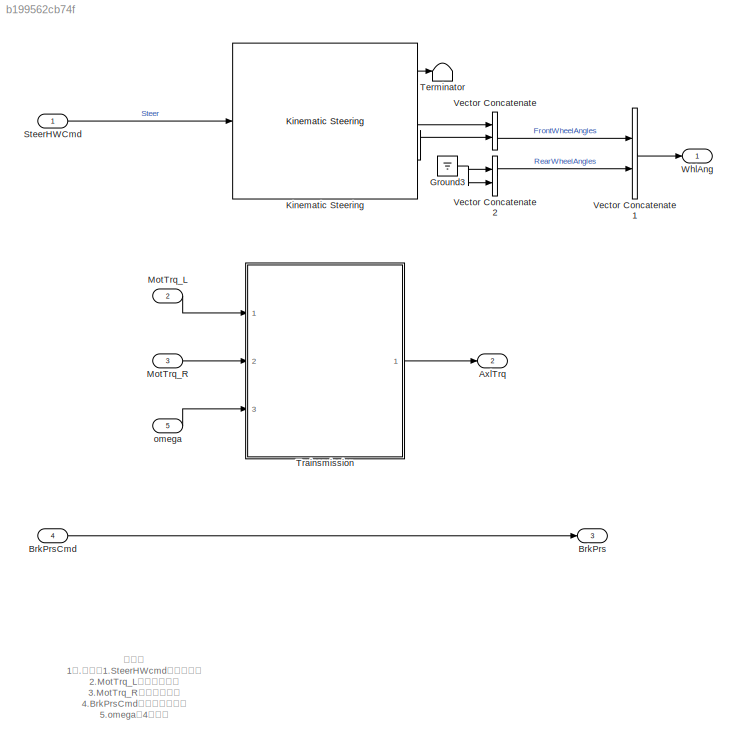
MODEL slx_b199562cb74f
KIND model
CONFIG AbsTol = auto
CONFIG EnableMultiTasking = off
CONFIG FixedStep = .001
CONFIG MaxStep = auto
CONFIG MinStep = auto
CONFIG RelTol = 1e-3
CONFIG SampleTimeConstraint = Unconstrained
CONFIG Solver = ode23tb
CONFIG SolverName = ode23tb
CONFIG StartTime = 0.0
CONFIG StopTime = inf
WORKSPACE source: mxarray member
WORKSPACE Trans: object (value not decoded)
WORKSPACE VEH: object (value not decoded)
BLOCK [Outport] AxlTrq
  Port = 2
  VectorParamsAs1DForOutWhenUnconnected = off
BLOCK [Outport] BrkPrs
  Port = 3
  PortDimensions = 4
  VectorParamsAs1DForOutWhenUnconnected = off
BLOCK [Inport] BrkPrsCmd
  Port = 4
  PortDimensions = 4
BLOCK [Ground] Ground3
BLOCK [Reference] Kinematic Steering  REF=vehdynlibsteering/Kinematic Steering
  Ports = [1, 3]
  SourceBlock = vehdynlibsteering/Kinematic Steering
  SourceProductName = Vehicle Dynamics Blockset
  SourceType = Kinematic Steering
BLOCK [Inport] MotTrq_L
  Port = 2
BLOCK [Inport] MotTrq_R
  Port = 3
BLOCK [Inport] SteerHWCmd
BLOCK [Terminator] Terminator
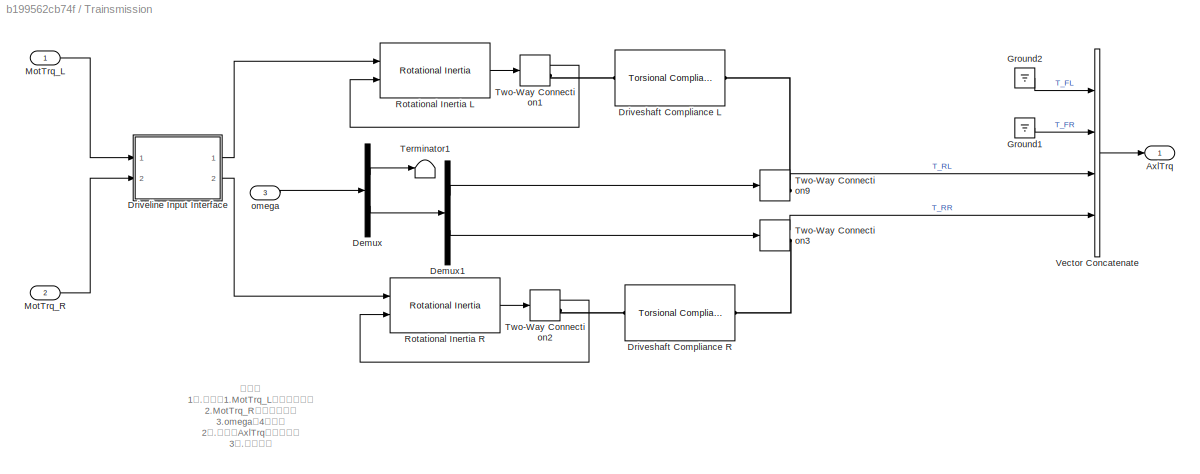
BLOCK [SubSystem] Trainsmission
  Ports = [3, 1]
  RequestExecContextInheritance = off
BLOCK [Outport] Trainsmission/AxlTrq
  VectorParamsAs1DForOutWhenUnconnected = off
BLOCK [Demux] Trainsmission/Demux
  Outputs = [2,2]
  Ports = [1, 2]
BLOCK [Demux] Trainsmission/Demux1
  Outputs = 2
  Ports = [1, 2]
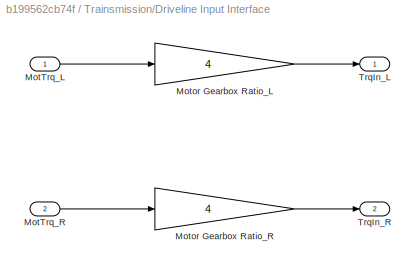
BLOCK [SubSystem] Trainsmission/Driveline Input Interface
  Ports = [2, 2]
  RequestExecContextInheritance = off
BLOCK [Inport] Trainsmission/Driveline Input Interface/MotTrq_L
BLOCK [Inport] Trainsmission/Driveline Input Interface/MotTrq_R
  Port = 2
BLOCK [Gain] Trainsmission/Driveline Input Interface/Motor Gearbox Ratio_L
  Gain = 4
BLOCK [Gain] Trainsmission/Driveline Input Interface/Motor Gearbox Ratio_R
  Gain = 4
BLOCK [Outport] Trainsmission/Driveline Input Interface/TrqIn_L
  VectorParamsAs1DForOutWhenUnconnected = off
BLOCK [Outport] Trainsmission/Driveline Input Interface/TrqIn_R
  Port = 2
  VectorParamsAs1DForOutWhenUnconnected = off
BLOCK [Reference] Trainsmission/Driveshaft Compliance L  REF=autolibsharedcoupling/Torsional Compliance
  Ports = [0, 0, 0, 0, 0, 1, 1]
  SourceBlock = autolibsharedcoupling/Torsional Compliance
  SourceProductBaseCode = PW,MT,VE,VP
  SourceType = Torsional Compliance
BLOCK [Reference] Trainsmission/Driveshaft Compliance R  REF=autolibsharedcoupling/Torsional Compliance
  Ports = [0, 0, 0, 0, 0, 1, 1]
  SourceBlock = autolibsharedcoupling/Torsional Compliance
  SourceProductBaseCode = PW,MT,VE,VP
  SourceType = Torsional Compliance
BLOCK [Ground] Trainsmission/Ground1
BLOCK [Ground] Trainsmission/Ground2
BLOCK [Inport] Trainsmission/MotTrq_L
BLOCK [Inport] Trainsmission/MotTrq_R
  Port = 2
BLOCK [Reference] Trainsmission/Rotational Inertia L  REF=autolibsharedcoupling/Rotational Inertia
  Ports = [2, 1]
  SourceBlock = autolibsharedcoupling/Rotational Inertia
  SourceProductBaseCode = PW,MT,VE,VP
  SourceType = Rotational Inertia
BLOCK [Reference] Trainsmission/Rotational Inertia R  REF=autolibsharedcoupling/Rotational Inertia
  Ports = [2, 1]
  SourceBlock = autolibsharedcoupling/Rotational Inertia
  SourceProductBaseCode = PW,MT,VE,VP
  SourceType = Rotational Inertia
BLOCK [Terminator] Trainsmission/Terminator1
BLOCK [TwoWayConnection] Trainsmission/Two-Way Connection1
  NameLocation = top
  Ports = [1, 1, 0, 0, 0, 0, 1]
BLOCK [TwoWayConnection] Trainsmission/Two-Way Connection2
  NameLocation = top
  Ports = [1, 1, 0, 0, 0, 0, 1]
BLOCK [TwoWayConnection] Trainsmission/Two-Way Connection3
  Ports = [1, 1, 0, 0, 0, 0, 1]
BLOCK [TwoWayConnection] Trainsmission/Two-Way Connection9
  Ports = [1, 1, 0, 0, 0, 0, 1]
BLOCK [Concatenate] Trainsmission/Vector Concatenate
  NumInputs = 4
  Ports = [4, 1]
BLOCK [Inport] Trainsmission/omega
  Port = 3
BLOCK [Concatenate] Vector Concatenate
  Ports = [2, 1]
BLOCK [Concatenate] Vector Concatenate1
  Ports = [2, 1]
BLOCK [Concatenate] Vector Concatenate2
  Ports = [2, 1]
BLOCK [Outport] WhlAng
  Unit = rad
  VectorParamsAs1DForOutWhenUnconnected = off
BLOCK [Inport] omega
  Port = 5
ANNOTATION (root): 注释： 1）.输入：1.SteerHWcmd：转向命令 2.MotTrq_L：左电机转矩 3.MotTrq_R：右电机转矩 4.BrkPrsCmd：制动压力命令 5.omega：4轮转速 2）.输出：1.WhlAng：轮子相对车身的转角 2.AxlTrq：轴向力矩 3.BrkPrs：刹车压力 3）.主模块： 1.Kinematic Steering：阿克曼转向模型 2.Trainsmission：后桥传动模块，主要作用为添加物理传动结构
ANNOTATION Trainsmission: 注释： 1）.输入：1.MotTrq_L：左电机转矩 2.MotTrq_R：右电机转矩 3.omega：4轮轮速 2）.输出：AxlTrq：轴向力矩 3）.主模块： 1.Driveline Input Interface：减速箱力矩转换（简单比例换算） 2.Rotational Inertia：机械传动模块（半轴等），主要设置转动惯量 3.Driveshaft Compliance：弹簧模块（阻尼，频率等），使用默认值
LINE BrkPrsCmd:1 -> BrkPrs:1
NET Ground3:1 -> Vector Concatenate2:1, Vector Concatenate2:2
LINE Kinematic Steering:1 -> Terminator:1
LINE Kinematic Steering:2 -> Vector Concatenate:1
LINE Kinematic Steering:3 -> Vector Concatenate:2
LINE MotTrq_L:1 -> Trainsmission:1
LINE MotTrq_R:1 -> Trainsmission:2
LINE SteerHWCmd:1 -> Kinematic Steering:1
LINE Trainsmission/Demux1:1 -> Trainsmission/Two-Way Connection9:1
LINE Trainsmission/Demux1:2 -> Trainsmission/Two-Way Connection3:1
LINE Trainsmission/Demux:1 -> Trainsmission/Terminator1:1
LINE Trainsmission/Demux:2 -> Trainsmission/Demux1:1
LINE Trainsmission/Driveline Input Interface/MotTrq_L:1 -> Trainsmission/Driveline Input Interface/Motor Gearbox Ratio_L:1
LINE Trainsmission/Driveline Input Interface/MotTrq_R:1 -> Trainsmission/Driveline Input Interface/Motor Gearbox Ratio_R:1
LINE Trainsmission/Driveline Input Interface/Motor Gearbox Ratio_L:1 -> Trainsmission/Driveline Input Interface/TrqIn_L:1
LINE Trainsmission/Driveline Input Interface/Motor Gearbox Ratio_R:1 -> Trainsmission/Driveline Input Interface/TrqIn_R:1
LINE Trainsmission/Driveline Input Interface:1 -> Trainsmission/Rotational Inertia L:1
LINE Trainsmission/Driveline Input Interface:2 -> Trainsmission/Rotational Inertia R:1
LINE Trainsmission/Ground1:1 -> Trainsmission/Vector Concatenate:2
LINE Trainsmission/Ground2:1 -> Trainsmission/Vector Concatenate:1
LINE Trainsmission/MotTrq_L:1 -> Trainsmission/Driveline Input Interface:1
LINE Trainsmission/MotTrq_R:1 -> Trainsmission/Driveline Input Interface:2
LINE Trainsmission/Rotational Inertia L:1 -> Trainsmission/Two-Way Connection1:1
LINE Trainsmission/Rotational Inertia R:1 -> Trainsmission/Two-Way Connection2:1
LINE Trainsmission/Two-Way Connection1:1 -> Trainsmission/Rotational Inertia L:2
LINE Trainsmission/Two-Way Connection2:1 -> Trainsmission/Rotational Inertia R:2
LINE Trainsmission/Two-Way Connection3:1 -> Trainsmission/Vector Concatenate:4
LINE Trainsmission/Two-Way Connection9:1 -> Trainsmission/Vector Concatenate:3
LINE Trainsmission/Vector Concatenate:1 -> Trainsmission/AxlTrq:1
LINE Trainsmission/omega:1 -> Trainsmission/Demux:1
LINE Trainsmission:1 -> AxlTrq:1
LINE Vector Concatenate1:1 -> WhlAng:1
LINE Vector Concatenate2:1 -> Vector Concatenate1:2
LINE Vector Concatenate:1 -> Vector Concatenate1:1
LINE omega:1 -> Trainsmission:3
PLINE Trainsmission/Driveshaft Compliance L:LConn1 -- Trainsmission/Two-Way Connection1:RConn1
PLINE Trainsmission/Driveshaft Compliance L:RConn1 -- Trainsmission/Two-Way Connection9:RConn1
PLINE Trainsmission/Driveshaft Compliance R:LConn1 -- Trainsmission/Two-Way Connection2:RConn1
PLINE Trainsmission/Driveshaft Compliance R:RConn1 -- Trainsmission/Two-Way Connection3:RConn1
note: NET lines group one-source signal fan-out (src -> all destinations, sorted); 1:1 wires keep LINE
